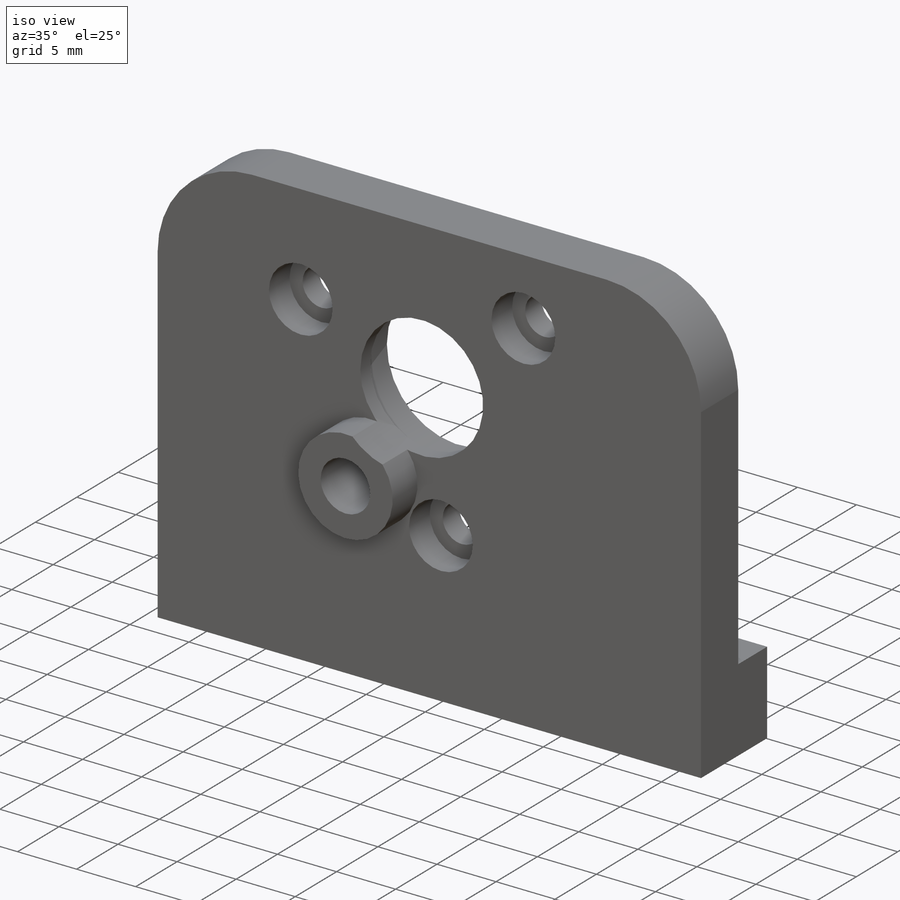
[diagram: iso view]
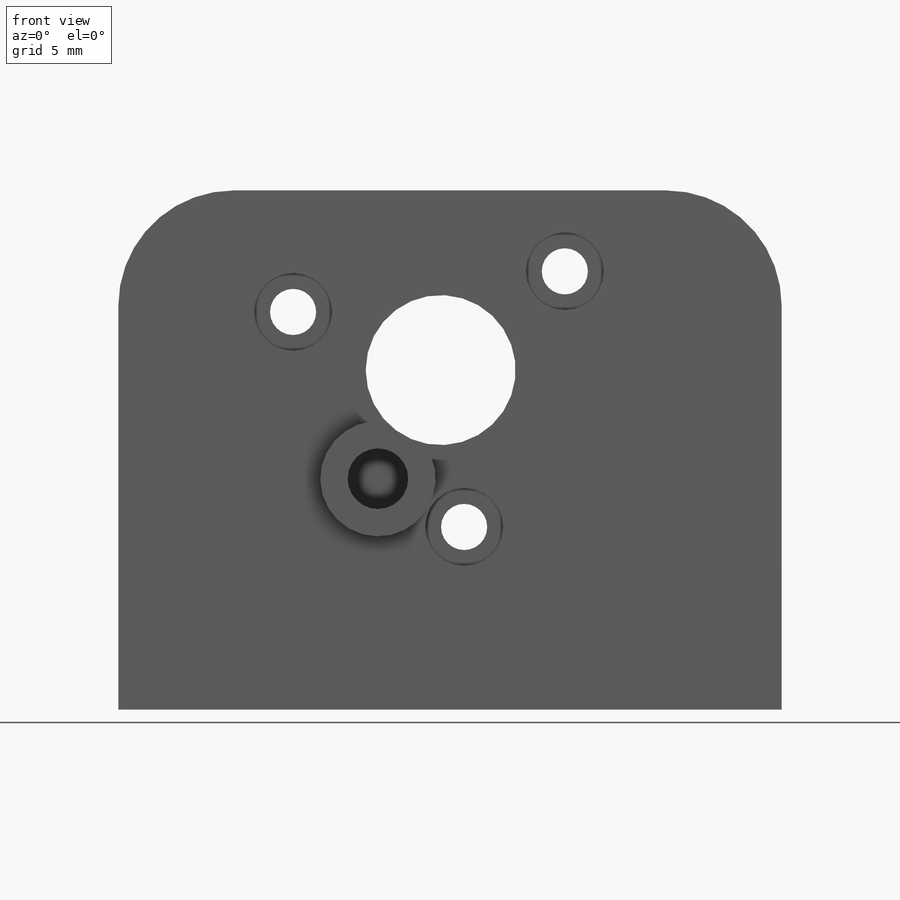
[diagram: front view]
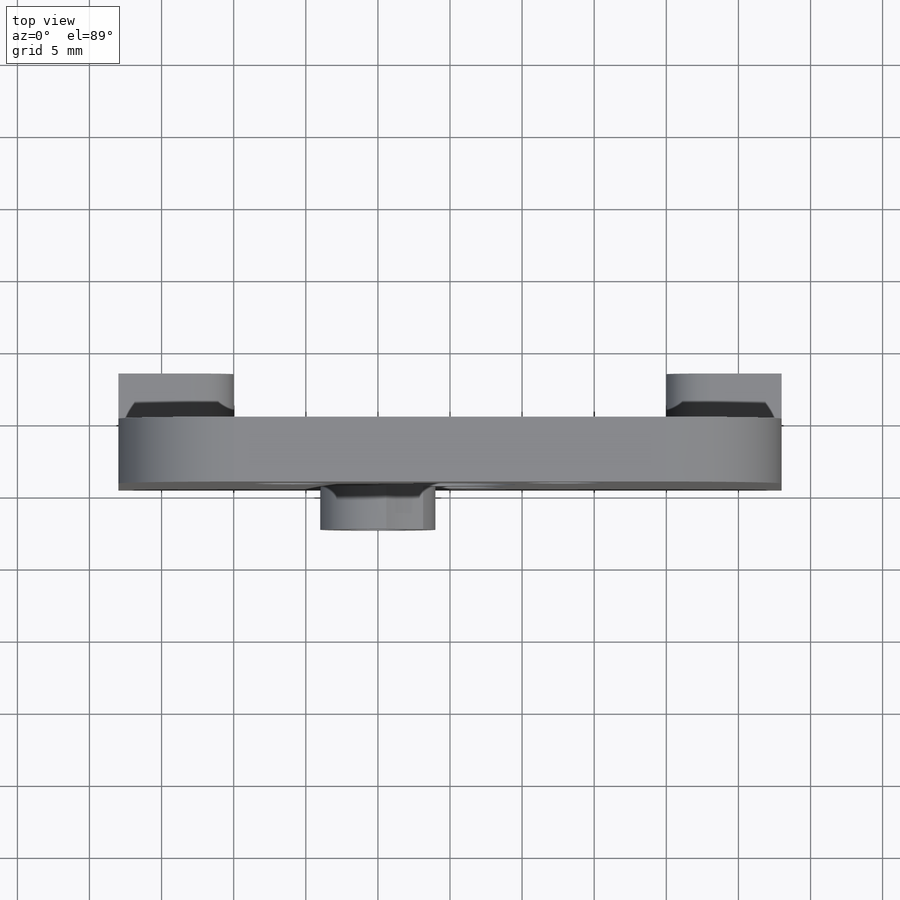
[diagram: top view]
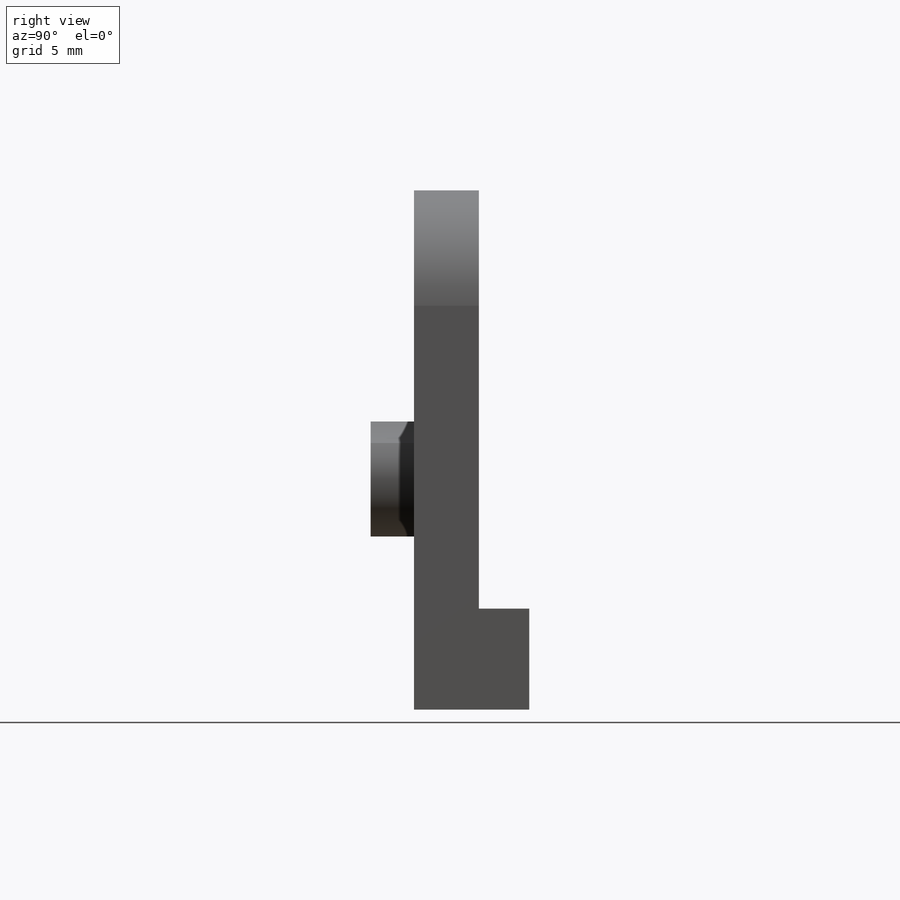
[diagram: right view]
SOLIDWORKS PART (.sldprt)
format: sldprt  version: not decoded by parser v0  size: 331,264 bytes
history: native  units: mm
features: sketch x14, hole x5, extrude x3, plane x2, fillet x2, material x1, revolve x1 (+13 scaffold rows collapsed)
feature tree (41):
  scaffold x13  (default folders/planes/origin — collapsed)
  material  "Material <not specified>"
  plane  "Plane1"  Offset=4.5mm
  sketch  "Sketch1"
  extrude  "Boss-Extrude1"  Depth=4.5mm
  sketch  "Sketch2"
  extrude  "Boss-Extrude2"  Depth=3.5mm
  sketch  "Sketch3"
  extrude  "Boss-Extrude3"  Depth=3.5mm
  plane  "Plane2"
  sketch  "Sketch4"
  revolve  "Revolve1"  Angle=360deg
  hole  "Ø1.7 (1.7) Diameter Hole1"  Diameter=1.7mm Depth=7mm
  sketch  "Sketch6"
  sketch  "Sketch5"  dims[hole-wizard template sketch: 46 standard entries collapsed; hole parameters kept: c15.Hole Dia.=1.7mm c15.Hole Depth=7.0mm c15.D3=~14.816244mm c15.Drill Angle=118.0deg]
  hole  "Ø2.5 (2.5) Diameter Hole1"  Diameter=2.5mm Depth=6mm
  sketch  "Sketch8"
  sketch  "Sketch7"  dims[hole-wizard template sketch: 50 standard entries collapsed; hole parameters above]
  hole  "Hole1"  Diameter=10.4mm Depth=7.5mm
  sketch  "Sketch10"
  sketch  "Sketch9"  dims[Diameter=10.4mm Depth=7.5mm C-Bore Diameter=12.2mm C-Bore Depth=3.3mm]
  hole  "CBORE for M3 Hex Head Machine Screw1"  Diameter=3.2mm Depth=8.000025mm
  sketch  "Sketch12"
  sketch  "Sketch11"  dims[hole-wizard template sketch: 42 standard entries collapsed; hole parameters kept: c12.Thru Hole Depth=~8.000025mm c12.C'Bore Dia.=5.4mm c12.C'Bore Depth=2.5mm]
  hole  "Ø4.2 (4.2) Diameter Hole1"  Diameter=4.2mm Depth=7mm
  sketch  "Sketch14"
  sketch  "Sketch13"  dims[hole-wizard template sketch: 47 standard entries collapsed; hole parameters kept: c15.Hole Depth=7.0mm c15.D3=~14.816244mm c15.Drill Angle=180.0deg]
  fillet  "Fillet1"  Radius=3mm
  fillet  "Fillet2"  Radius=8mm
decode coverage: 16 of 25 modeling features carry decoded parameters
note: ~ marks probable driven/reference dimensions
summary: Diameter pulled from absorbed wizard sketch
note: suppression state not decoded; provenance and decode notes live in map.json
